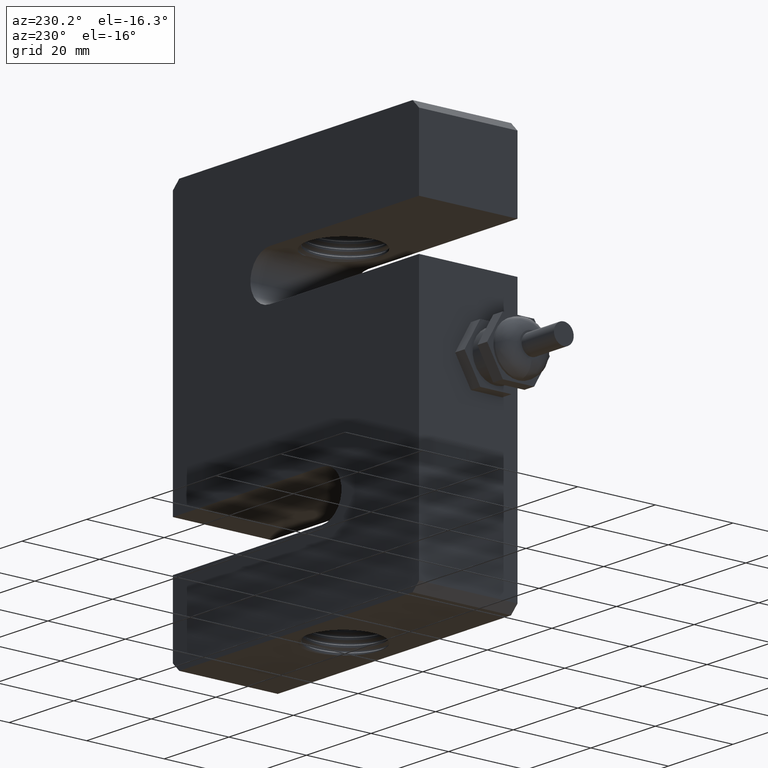
[diagram: clean part render]
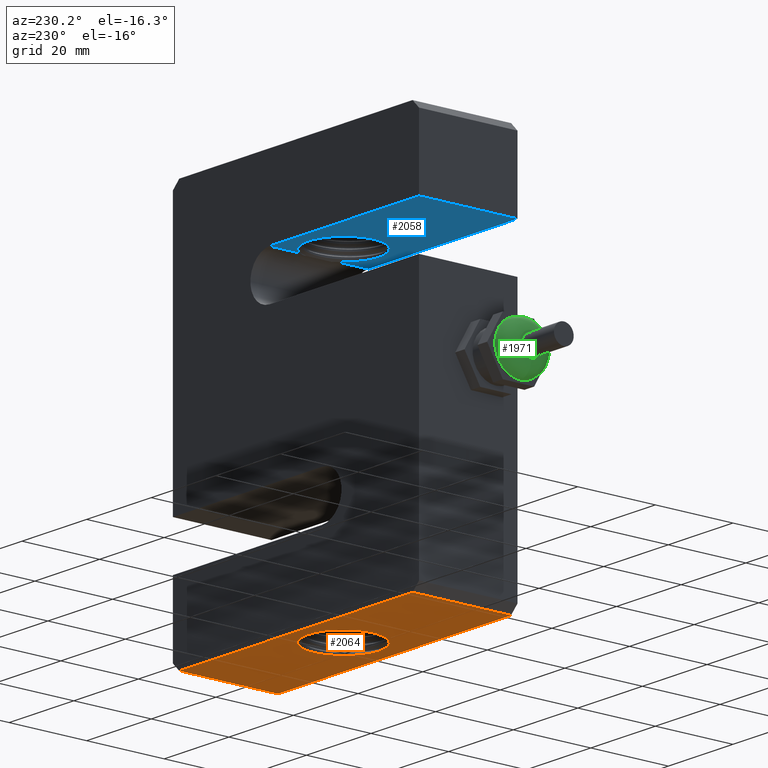
[diagram: same view with three faces highlighted in distinct colors, each labeled with its STEP entity id]
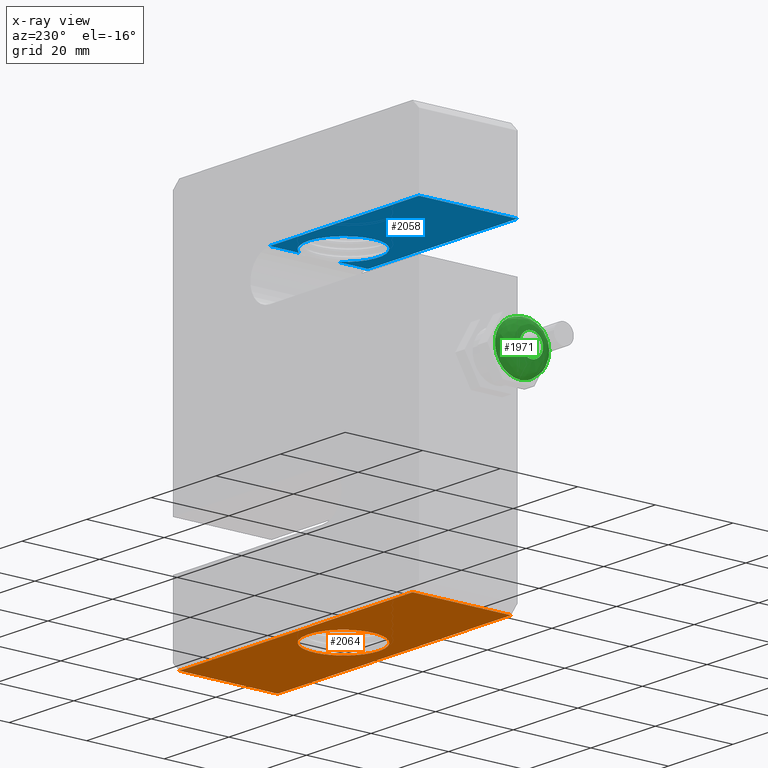
[diagram: x-ray of the same camera — body ghosted, the three highlighted faces saturated]
A machine part, auxiliary view with three faces highlighted in distinct colors.
The next image is the same camera in x-ray (body ghosted, the three faces saturated) — at least one of them is partly hidden behind the body in this view.
Their STEP definitions:

[orange] entity #2064 — the highlighted planar face has unit normal (0, 0, -1).
#127=B_SPLINE_CURVE_WITH_KNOTS('',3,(#6160,#6161,#6162,#6163,#6164,#6165,
#6166,#6167,#6168,#6169,#6170,#6171,#6172,#6173,#6174,#6175,#6176,#6177,
#6178,#6179,#6180,#6181,#6182,#6183,#6184,#6185,#6186,#6187,#6188,#6189,
#6190,#6191,#6192,#6193,#6194,#6195,#6196,#6197,#6198,#6199,#6200,#6201,
#6202,#6203,#6204,#6205,#6206,#6207,#6208,#6209,#6210,#6211,#6212,#6213,
#6214,#6215,#6216,#6217,#6218,#6219,#6220,#6221,#6222,#6223,#6224,#6225,
#6226,#6227,#6228,#6229,#6230,#6231,#6232,#6233,#6234,#6235,#6236,#6237,
#6238,#6239,#6240,#6241,#6242,#6243,#6244,#6245,#6246,#6247,#6248,#6249,
#6250,#6251,#6252,#6253,#6254,#6255,#6256,#6257,#6258,#6259,#6260,#6261,
#6262,#6263,#6264,#6265),.UNSPECIFIED.,.F.,.F.,(4,3,3,3,3,3,3,3,3,3,3,3,
3,3,3,3,3,3,3,3,3,3,3,3,3,3,3,3,3,3,3,3,3,3,3,4),(0.,0.0709001102821385,
0.142493419958094,0.214258092780719,0.285261098800125,0.331749284303985,
0.353509829266226,0.367301783242685,0.374963572326442,0.445609147196169,
0.471213840815562,0.541872824588906,0.612672001609219,0.683052612458871,
0.714171902654686,0.728093331494686,0.735785311123709,0.805540321727164,
0.875024120835001,0.932006934025384,1.00181629251055,1.04928011262189,1.0700455339206,
1.08379648369524,1.09180523985803,1.16423564324384,1.23298399184663,1.30117974510278,
1.34135329925203,1.35629048513793,1.3646913166047,1.38152685340128,1.44947015381554,
1.51767311396806,1.58548725284925,1.62532069162855),.UNSPECIFIED.);
#128=B_SPLINE_CURVE_WITH_KNOTS('',3,(#6266,#6267,#6268,#6269,#6270,#6271,
#6272,#6273,#6274,#6275,#6276,#6277,#6278,#6279,#6280,#6281,#6282,#6283,
#6284,#6285,#6286,#6287,#6288,#6289,#6290,#6291,#6292,#6293,#6294,#6295,
#6296,#6297,#6298,#6299,#6300,#6301,#6302,#6303,#6304,#6305,#6306,#6307,
#6308,#6309,#6310,#6311,#6312,#6313,#6314,#6315,#6316,#6317,#6318,#6319,
#6320,#6321,#6322,#6323,#6324,#6325,#6326,#6327,#6328,#6329,#6330,#6331,
#6332,#6333,#6334,#6335,#6336,#6337,#6338,#6339,#6340,#6341,#6342,#6343,
#6344,#6345,#6346,#6347,#6348,#6349,#6350,#6351,#6352,#6353,#6354,#6355,
#6356,#6357,#6358,#6359,#6360,#6361,#6362,#6363,#6364,#6365,#6366,#6367,
#6368,#6369,#6370,#6371),.UNSPECIFIED.,.F.,.F.,(4,3,3,3,3,3,3,3,3,3,3,3,
3,3,3,3,3,3,3,3,3,3,3,3,3,3,3,3,3,3,3,3,3,3,3,4),(0.,0.0664591051755904,
0.133905929878242,0.201981998929227,0.270064385369685,0.313344838743949,
0.335127701001341,0.344496286963589,0.352074743825142,0.42109851654693,
0.443186198866742,0.511565802064909,0.580566600369815,0.649699126450573,
0.680643761045784,0.69213033315687,0.701384184412642,0.77105220653177,0.841198504662556,
0.897256203212259,0.967187845364032,1.01646401471832,1.03802233881082,1.05156214577594,
1.05960753481099,1.12981620922672,1.20076561757214,1.2716200452087,1.31650862270352,
1.33105696215007,1.34223119897617,1.36139720019834,1.43202906454588,1.50333486208143,
1.57499922596976,1.62247305797282),.UNSPECIFIED.);
#162=FACE_BOUND('',#428,.T.);
#197=PLANE('',#2232);
#302=FACE_OUTER_BOUND('',#427,.T.);
#427=EDGE_LOOP('',(#1684,#1685,#1686,#1687));
#428=EDGE_LOOP('',(#1688,#1689,#1690,#1691));
#556=LINE('',#5904,#702);
#579=LINE('',#6154,#725);
#581=LINE('',#6158,#727);
#582=LINE('',#6159,#728);
#702=VECTOR('',#2601,10.);
#725=VECTOR('',#2642,10.);
#727=VECTOR('',#2646,10.);
#728=VECTOR('',#2647,10.);
#763=CIRCLE('',#2172,9.525);
#766=CIRCLE('',#2188,8.7503);
#853=VERTEX_POINT('',#3334);
#854=VERTEX_POINT('',#3341);
#885=VERTEX_POINT('',#4335);
#886=VERTEX_POINT('',#4361);
#956=VERTEX_POINT('',#5901);
#957=VERTEX_POINT('',#5903);
#975=VERTEX_POINT('',#6153);
#976=VERTEX_POINT('',#6157);
#1089=EDGE_CURVE('',#854,#853,#763,.T.);
#1132=EDGE_CURVE('',#886,#885,#766,.T.);
#1226=EDGE_CURVE('',#956,#957,#556,.T.);
#1253=EDGE_CURVE('',#957,#975,#579,.T.);
#1255=EDGE_CURVE('',#976,#956,#581,.T.);
#1256=EDGE_CURVE('',#975,#976,#582,.T.);
#1257=EDGE_CURVE('',#853,#886,#127,.T.);
#1258=EDGE_CURVE('',#885,#854,#128,.T.);
#1684=ORIENTED_EDGE('',*,*,#1255,.F.);
#1685=ORIENTED_EDGE('',*,*,#1256,.F.);
#1686=ORIENTED_EDGE('',*,*,#1253,.F.);
#1687=ORIENTED_EDGE('',*,*,#1226,.F.);
#1688=ORIENTED_EDGE('',*,*,#1257,.T.);
#1689=ORIENTED_EDGE('',*,*,#1132,.T.);
#1690=ORIENTED_EDGE('',*,*,#1258,.T.);
#1691=ORIENTED_EDGE('',*,*,#1089,.T.);
#2064=ADVANCED_FACE('',(#302,#162),#197,.T.);
#2172=AXIS2_PLACEMENT_3D('',#3342,#2453,#2454);
#2188=AXIS2_PLACEMENT_3D('',#4362,#2498,#2499);
#2232=AXIS2_PLACEMENT_3D('',#6156,#2644,#2645);
#2453=DIRECTION('center_axis',(0.,0.,1.));
#2454=DIRECTION('ref_axis',(1.,6.43162402581532E-14,0.));
#2498=DIRECTION('center_axis',(0.,0.,1.));
#2499=DIRECTION('ref_axis',(1.,0.,0.));
#2601=DIRECTION('',(-1.,0.,0.));
#2642=DIRECTION('',(0.,-1.,0.));
#2644=DIRECTION('center_axis',(0.,0.,-1.));
#2645=DIRECTION('ref_axis',(-1.,0.,0.));
#2646=DIRECTION('',(0.,1.,0.));
#2647=DIRECTION('',(1.,0.,0.));
#3334=CARTESIAN_POINT('',(-4.46859346148196,8.41173569936673,-50.8));
#3341=CARTESIAN_POINT('',(4.46859346148165,8.41173569936689,-50.8));
#3342=CARTESIAN_POINT('Origin',(0.,0.,-50.8));
#4335=CARTESIAN_POINT('',(6.76091187078728,-5.55498161702157,-50.8));
#4361=CARTESIAN_POINT('',(-6.76091187078707,-5.55498161702183,-50.8));
#4362=CARTESIAN_POINT('Origin',(0.,0.,-50.8));
#5901=CARTESIAN_POINT('',(36.1,12.7,-50.8));
#5903=CARTESIAN_POINT('',(-36.1,12.7,-50.8));
#5904=CARTESIAN_POINT('',(-38.1,12.7,-50.8));
#6153=CARTESIAN_POINT('',(-36.1,-12.7,-50.8));
#6154=CARTESIAN_POINT('',(-36.1,0.,-50.8));
#6156=CARTESIAN_POINT('Origin',(38.1,0.,-50.8));
#6157=CARTESIAN_POINT('',(36.1,-12.7,-50.8));
#6158=CARTESIAN_POINT('',(36.1,0.,-50.8));
#6159=CARTESIAN_POINT('',(-38.1,-12.7,-50.8));
#6160=CARTESIAN_POINT('Ctrl Pts',(-4.4685934614819,8.41173569936676,-50.8));
#6161=CARTESIAN_POINT('Ctrl Pts',(-4.67199633003562,8.29139912444319,-50.8));
#6162=CARTESIAN_POINT('Ctrl Pts',(-4.87043687997111,8.16357508907796,-50.8));
#6163=CARTESIAN_POINT('Ctrl Pts',(-5.06361441319958,8.02867938534016,-50.8));
#6164=CARTESIAN_POINT('Ctrl Pts',(-5.25868066773469,7.8924647891537,-50.8));
#6165=CARTESIAN_POINT('Ctrl Pts',(-5.44838097653642,7.74903913336006,-50.8));
#6166=CARTESIAN_POINT('Ctrl Pts',(-5.63237719301748,7.5987853822906,-50.8));
#6167=CARTESIAN_POINT('Ctrl Pts',(-5.81681381616187,7.44817198929792,-50.8));
#6168=CARTESIAN_POINT('Ctrl Pts',(-5.9955194743902,7.29069728848969,-50.8));
#6169=CARTESIAN_POINT('Ctrl Pts',(-6.16811789872641,7.12670888687211,-50.8));
#6170=CARTESIAN_POINT('Ctrl Pts',(-6.33888446784842,6.96446095889864,-50.8));
#6171=CARTESIAN_POINT('Ctrl Pts',(-6.50367311955335,6.79583633489891,-50.8));
#6172=CARTESIAN_POINT('Ctrl Pts',(-6.66207846293627,6.62114206585709,-50.8));
#6173=CARTESIAN_POINT('Ctrl Pts',(-6.76579205762514,6.5067635340037,-50.8));
#6174=CARTESIAN_POINT('Ctrl Pts',(-6.86676841993438,6.38978249052989,-50.8));
#6175=CARTESIAN_POINT('Ctrl Pts',(-6.96488293591594,6.27027972785523,-50.8));
#6176=CARTESIAN_POINT('Ctrl Pts',(-7.01080912798657,6.21434196190224,-50.8));
#6177=CARTESIAN_POINT('Ctrl Pts',(-7.0561081433015,6.15785161827241,-50.8));
#6178=CARTESIAN_POINT('Ctrl Pts',(-7.10076649592345,6.10081672435565,-50.8));
#6179=CARTESIAN_POINT('Ctrl Pts',(-7.12907120727582,6.06466769254981,-50.8));
#6180=CARTESIAN_POINT('Ctrl Pts',(-7.15711854917032,6.02829990662208,-50.8));
#6181=CARTESIAN_POINT('Ctrl Pts',(-7.18490498979382,5.99171538082305,-50.8));
#6182=CARTESIAN_POINT('Ctrl Pts',(-7.20034108012655,5.97139172538743,-50.8));
#6183=CARTESIAN_POINT('Ctrl Pts',(-7.21569379876079,5.95100490313061,-50.8));
#6184=CARTESIAN_POINT('Ctrl Pts',(-7.23095792774408,5.93056172196899,-50.8));
#6185=CARTESIAN_POINT('Ctrl Pts',(-7.37170092590309,5.74206524033257,-50.8));
#6186=CARTESIAN_POINT('Ctrl Pts',(-7.50503971408407,5.54861675880887,-50.8));
#6187=CARTESIAN_POINT('Ctrl Pts',(-7.63063945627879,5.35056843981255,-50.8));
#6188=CARTESIAN_POINT('Ctrl Pts',(-7.67616166943228,5.27878805527908,-50.8));
#6189=CARTESIAN_POINT('Ctrl Pts',(-7.72066688382301,5.2064031143968,-50.8));
#6190=CARTESIAN_POINT('Ctrl Pts',(-7.76413778969966,5.13342938600451,-50.8));
#6191=CARTESIAN_POINT('Ctrl Pts',(-7.88410056209635,4.93205031203482,-50.8));
#6192=CARTESIAN_POINT('Ctrl Pts',(-7.99619007899217,4.72618898741386,-50.8));
#6193=CARTESIAN_POINT('Ctrl Pts',(-8.10028660786293,4.51635051556556,-50.8));
#6194=CARTESIAN_POINT('Ctrl Pts',(-8.2045896728258,4.30609570689587,-50.8));
#6195=CARTESIAN_POINT('Ctrl Pts',(-8.30086817994642,4.09184728980698,-50.8));
#6196=CARTESIAN_POINT('Ctrl Pts',(-8.38895237667289,3.87409604779362,-50.8));
#6197=CARTESIAN_POINT('Ctrl Pts',(-8.47651581784158,3.65763215553999,-50.8));
#6198=CARTESIAN_POINT('Ctrl Pts',(-8.55598167081888,3.43770607570065,-50.8));
#6199=CARTESIAN_POINT('Ctrl Pts',(-8.62713237346924,3.21479272665983,-50.8));
#6200=CARTESIAN_POINT('Ctrl Pts',(-8.65859216525966,3.11622999590802,-50.8));
#6201=CARTESIAN_POINT('Ctrl Pts',(-8.68842564156855,3.01708320946466,-50.8));
#6202=CARTESIAN_POINT('Ctrl Pts',(-8.71661070472616,2.91739347503616,-50.8));
#6203=CARTESIAN_POINT('Ctrl Pts',(-8.72921948688767,2.87279658560866,-50.8));
#6204=CARTESIAN_POINT('Ctrl Pts',(-8.74149834769843,2.82809103924542,-50.8));
#6205=CARTESIAN_POINT('Ctrl Pts',(-8.75344517448844,2.78328053125901,-50.8));
#6206=CARTESIAN_POINT('Ctrl Pts',(-8.76004613113997,2.75852146963114,-50.8));
#6207=CARTESIAN_POINT('Ctrl Pts',(-8.7665455232183,2.73373096186406,-50.8));
#6208=CARTESIAN_POINT('Ctrl Pts',(-8.77293977767897,2.70892257612274,-50.8));
#6209=CARTESIAN_POINT('Ctrl Pts',(-8.83092631810376,2.48394678394683,-50.8));
#6210=CARTESIAN_POINT('Ctrl Pts',(-8.88034490532629,2.25722598854657,-50.8));
#6211=CARTESIAN_POINT('Ctrl Pts',(-8.92108746780887,2.029246959997,-50.8));
#6212=CARTESIAN_POINT('Ctrl Pts',(-8.96167162086378,1.80215432703059,-50.8));
#6213=CARTESIAN_POINT('Ctrl Pts',(-8.9936471891481,1.57381256820566,-50.8));
#6214=CARTESIAN_POINT('Ctrl Pts',(-9.01685708647818,1.34469234777671,-50.8));
#6215=CARTESIAN_POINT('Ctrl Pts',(-9.03589123919737,1.15679365935612,-50.8));
#6216=CARTESIAN_POINT('Ctrl Pts',(-9.04902920909078,0.968371074654891,-50.8));
#6217=CARTESIAN_POINT('Ctrl Pts',(-9.05615816709263,0.779683525987649,-50.8));
#6218=CARTESIAN_POINT('Ctrl Pts',(-9.06489181776576,0.548523356997939,-50.8));
#6219=CARTESIAN_POINT('Ctrl Pts',(-9.06460800883652,0.31696478464583,-50.8));
#6220=CARTESIAN_POINT('Ctrl Pts',(-9.05538564512526,0.0855163185522522,
-50.8));
#6221=CARTESIAN_POINT('Ctrl Pts',(-9.04911530227021,-0.0718469433096423,
-50.8));
#6222=CARTESIAN_POINT('Ctrl Pts',(-9.03871184022127,-0.229159148719257,
-50.8));
#6223=CARTESIAN_POINT('Ctrl Pts',(-9.02418698201668,-0.386256125246251,
-50.8));
#6224=CARTESIAN_POINT('Ctrl Pts',(-9.01783235655217,-0.454986052476811,
-50.8));
#6225=CARTESIAN_POINT('Ctrl Pts',(-9.01068873635049,-0.523674726765148,
-50.8));
#6226=CARTESIAN_POINT('Ctrl Pts',(-9.00275648649436,-0.592308102805853,
-50.8));
#6227=CARTESIAN_POINT('Ctrl Pts',(-8.9975037171042,-0.637757414583509,-50.8));
#6228=CARTESIAN_POINT('Ctrl Pts',(-8.99190511457548,-0.683182473341333,
-50.8));
#6229=CARTESIAN_POINT('Ctrl Pts',(-8.98596069602914,-0.728579149513314,
-50.8));
#6230=CARTESIAN_POINT('Ctrl Pts',(-8.98249857890651,-0.75501884393597,-50.8));
#6231=CARTESIAN_POINT('Ctrl Pts',(-8.97891933479615,-0.781447287270416,
-50.8));
#6232=CARTESIAN_POINT('Ctrl Pts',(-8.97522473646301,-0.807851995013543,
-50.8));
#6233=CARTESIAN_POINT('Ctrl Pts',(-8.94181115235853,-1.04665357596368,-50.8));
#6234=CARTESIAN_POINT('Ctrl Pts',(-8.89893377101505,-1.28377767068812,-50.8));
#6235=CARTESIAN_POINT('Ctrl Pts',(-8.84674647651231,-1.51865825522473,-50.8));
#6236=CARTESIAN_POINT('Ctrl Pts',(-8.79721216291751,-1.74159850615411,-50.8));
#6237=CARTESIAN_POINT('Ctrl Pts',(-8.73928977287701,-1.96251812949972,-50.8));
#6238=CARTESIAN_POINT('Ctrl Pts',(-8.67305978700408,-2.18091930622605,-50.8));
#6239=CARTESIAN_POINT('Ctrl Pts',(-8.60736215402028,-2.3975649866181,-50.8));
#6240=CARTESIAN_POINT('Ctrl Pts',(-8.53348971043,-2.61173314047273,-50.8));
#6241=CARTESIAN_POINT('Ctrl Pts',(-8.45147527087939,-2.82291522926392,-50.8));
#6242=CARTESIAN_POINT('Ctrl Pts',(-8.40316124293793,-2.94732085093861,-50.8));
#6243=CARTESIAN_POINT('Ctrl Pts',(-8.35202085840817,-3.07068974940344,-50.8));
#6244=CARTESIAN_POINT('Ctrl Pts',(-8.29805377307177,-3.19291297457016,-50.8));
#6245=CARTESIAN_POINT('Ctrl Pts',(-8.27798792621154,-3.23835757295216,-50.8));
#6246=CARTESIAN_POINT('Ctrl Pts',(-8.25753124451609,-3.28364374349192,-50.8));
#6247=CARTESIAN_POINT('Ctrl Pts',(-8.23668353188708,-3.3287657316233,-50.8));
#6248=CARTESIAN_POINT('Ctrl Pts',(-8.22495855761136,-3.35414281540819,-50.8));
#6249=CARTESIAN_POINT('Ctrl Pts',(-8.21311179750344,-3.37946379099462,-50.8));
#6250=CARTESIAN_POINT('Ctrl Pts',(-8.20114674076732,-3.40472064015666,-50.8));
#6251=CARTESIAN_POINT('Ctrl Pts',(-8.17716838174998,-3.45533617923935,-50.8));
#6252=CARTESIAN_POINT('Ctrl Pts',(-8.15271093730792,-3.50570286209907,-50.8));
#6253=CARTESIAN_POINT('Ctrl Pts',(-8.12777589522184,-3.55581349669472,-50.8));
#6254=CARTESIAN_POINT('Ctrl Pts',(-8.0271453613834,-3.75804535549551,-50.8));
#6255=CARTESIAN_POINT('Ctrl Pts',(-7.91873989014854,-3.95610897876036,-50.8));
#6256=CARTESIAN_POINT('Ctrl Pts',(-7.80292736303148,-4.1496465468373,-50.8));
#6257=CARTESIAN_POINT('Ctrl Pts',(-7.68667223376975,-4.34392375979411,-50.8));
#6258=CARTESIAN_POINT('Ctrl Pts',(-7.56295286643303,-4.53364077726578,-50.8));
#6259=CARTESIAN_POINT('Ctrl Pts',(-7.43209825035731,-4.71840547454071,-50.8));
#6260=CARTESIAN_POINT('Ctrl Pts',(-7.30198962914853,-4.90211683858301,-50.8));
#6261=CARTESIAN_POINT('Ctrl Pts',(-7.16482638280398,-5.08093264772301,-50.8));
#6262=CARTESIAN_POINT('Ctrl Pts',(-7.02089661810347,-5.25443040123507,-50.8));
#6263=CARTESIAN_POINT('Ctrl Pts',(-6.93635351890167,-5.35634148138572,-50.8));
#6264=CARTESIAN_POINT('Ctrl Pts',(-6.84947514992096,-5.45641694783345,-50.8));
#6265=CARTESIAN_POINT('Ctrl Pts',(-6.76031521176791,-5.55456418590757,-50.8));
#6266=CARTESIAN_POINT('Ctrl Pts',(6.76091187078728,-5.55498161702157,-50.8));
#6267=CARTESIAN_POINT('Ctrl Pts',(6.90992074038008,-5.39105464238615,-50.8));
#6268=CARTESIAN_POINT('Ctrl Pts',(7.05229797137168,-5.22166742737262,-50.8));
#6269=CARTESIAN_POINT('Ctrl Pts',(7.18792322724407,-5.04732688549161,-50.8));
#6270=CARTESIAN_POINT('Ctrl Pts',(7.3255641544565,-4.87039528318149,-50.8));
#6271=CARTESIAN_POINT('Ctrl Pts',(7.45625130585648,-4.68836159239181,-50.8));
#6272=CARTESIAN_POINT('Ctrl Pts',(7.57982791326478,-4.50171121347885,-50.8));
#6273=CARTESIAN_POINT('Ctrl Pts',(7.70455742716113,-4.31331948207728,-50.8));
#6274=CARTESIAN_POINT('Ctrl Pts',(7.82204349685676,-4.12022400972177,-50.8));
#6275=CARTESIAN_POINT('Ctrl Pts',(7.93208769597192,-3.92288617783511,-50.8));
#6276=CARTESIAN_POINT('Ctrl Pts',(8.04214210707604,-3.7255300331998,-50.8));
#6277=CARTESIAN_POINT('Ctrl Pts',(8.144753620177,-3.52393016908535,-50.8));
#6278=CARTESIAN_POINT('Ctrl Pts',(8.2396811459956,-3.31851875399422,-50.8));
#6279=CARTESIAN_POINT('Ctrl Pts',(8.30002724386217,-3.18793726826489,-50.8));
#6280=CARTESIAN_POINT('Ctrl Pts',(8.35726719181391,-3.0558148831223,-50.8));
#6281=CARTESIAN_POINT('Ctrl Pts',(8.41132909139091,-2.92225807137213,-50.8));
#6282=CARTESIAN_POINT('Ctrl Pts',(8.43853820821034,-2.85503951410025,-50.8));
#6283=CARTESIAN_POINT('Ctrl Pts',(8.46494217765317,-2.78745755953105,-50.8));
#6284=CARTESIAN_POINT('Ctrl Pts',(8.49053103479878,-2.7195255308323,-50.8));
#6285=CARTESIAN_POINT('Ctrl Pts',(8.5015365401824,-2.6903086610319,-50.8));
#6286=CARTESIAN_POINT('Ctrl Pts',(8.51239126147259,-2.66102703367082,-50.8));
#6287=CARTESIAN_POINT('Ctrl Pts',(8.52309437424013,-2.63168170101989,-50.8));
#6288=CARTESIAN_POINT('Ctrl Pts',(8.53175235941741,-2.6079436109304,-50.8));
#6289=CARTESIAN_POINT('Ctrl Pts',(8.54030782513245,-2.58417290818289,-50.8));
#6290=CARTESIAN_POINT('Ctrl Pts',(8.5487601305469,-2.5603714680523,-50.8));
#6291=CARTESIAN_POINT('Ctrl Pts',(8.62574282221622,-2.34359050274002,-50.8));
#6292=CARTESIAN_POINT('Ctrl Pts',(8.69418335043337,-2.12422952714435,-50.8));
#6293=CARTESIAN_POINT('Ctrl Pts',(8.7539078676953,-1.90277499944435,-50.8));
#6294=CARTESIAN_POINT('Ctrl Pts',(8.77301977815697,-1.83190930979511,-50.8));
#6295=CARTESIAN_POINT('Ctrl Pts',(8.79123884803959,-1.76082899144532,-50.8));
#6296=CARTESIAN_POINT('Ctrl Pts',(8.8085584632977,-1.68954933567766,-50.8));
#6297=CARTESIAN_POINT('Ctrl Pts',(8.86217696440373,-1.46887998219269,-50.8));
#6298=CARTESIAN_POINT('Ctrl Pts',(8.90717867564724,-1.24630174251928,-50.8));
#6299=CARTESIAN_POINT('Ctrl Pts',(8.94365709135836,-1.02232149253729,-50.8));
#6300=CARTESIAN_POINT('Ctrl Pts',(8.98046689555788,-0.796306492004147,-50.8));
#6301=CARTESIAN_POINT('Ctrl Pts',(9.00859794243664,-0.568863263063085,-50.8));
#6302=CARTESIAN_POINT('Ctrl Pts',(9.02809560988881,-0.34049608926948,-50.8));
#6303=CARTESIAN_POINT('Ctrl Pts',(9.04763049987218,-0.111692945159295,-50.8));
#6304=CARTESIAN_POINT('Ctrl Pts',(9.05849906893589,0.118038345894921,-50.8));
#6305=CARTESIAN_POINT('Ctrl Pts',(9.0606952257175,0.348197299065563,-50.8));
#6306=CARTESIAN_POINT('Ctrl Pts',(9.06167825458935,0.451219495829528,-50.8));
#6307=CARTESIAN_POINT('Ctrl Pts',(9.06092300486067,0.554327406004136,-50.8));
#6308=CARTESIAN_POINT('Ctrl Pts',(9.05842553530232,0.657476028228282,-50.8));
#6309=CARTESIAN_POINT('Ctrl Pts',(9.05749848075627,0.695764542629426,-50.8));
#6310=CARTESIAN_POINT('Ctrl Pts',(9.05633134900378,0.734058664316742,-50.8));
#6311=CARTESIAN_POINT('Ctrl Pts',(9.05492386429167,0.772356081419683,-50.8));
#6312=CARTESIAN_POINT('Ctrl Pts',(9.05378996167523,0.803209376721665,-50.8));
#6313=CARTESIAN_POINT('Ctrl Pts',(9.05249992144982,0.834066609938651,-50.8));
#6314=CARTESIAN_POINT('Ctrl Pts',(9.05105478766788,0.864904422685336,-50.8));
#6315=CARTESIAN_POINT('Ctrl Pts',(9.04017503506519,1.09706823871832,-50.8));
#6316=CARTESIAN_POINT('Ctrl Pts',(9.02049998808164,1.32840982497125,-50.8));
#6317=CARTESIAN_POINT('Ctrl Pts',(8.9921311903713,1.55841071996507,-50.8));
#6318=CARTESIAN_POINT('Ctrl Pts',(8.96356763881246,1.78999058774137,-50.8));
#6319=CARTESIAN_POINT('Ctrl Pts',(8.92619062658395,2.02021196641844,-50.8));
#6320=CARTESIAN_POINT('Ctrl Pts',(8.88005202390647,2.24855570890172,-50.8));
#6321=CARTESIAN_POINT('Ctrl Pts',(8.84318017251416,2.43103753649543,-50.8));
#6322=CARTESIAN_POINT('Ctrl Pts',(8.80071176142145,2.6123205460415,-50.8));
#6323=CARTESIAN_POINT('Ctrl Pts',(8.75264933060899,2.79213994689297,-50.8));
#6324=CARTESIAN_POINT('Ctrl Pts',(8.69269173692466,3.01646356911842,-50.8));
#6325=CARTESIAN_POINT('Ctrl Pts',(8.6240300108968,3.23851022055642,-50.8));
#6326=CARTESIAN_POINT('Ctrl Pts',(8.54693752504054,3.45786176943455,-50.8));
#6327=CARTESIAN_POINT('Ctrl Pts',(8.49261558618557,3.61242419265329,-50.8));
#6328=CARTESIAN_POINT('Ctrl Pts',(8.43410659574006,3.7656483049574,-50.8));
#6329=CARTESIAN_POINT('Ctrl Pts',(8.37149152639884,3.91738276161331,-50.8));
#6330=CARTESIAN_POINT('Ctrl Pts',(8.34409743356205,3.98376658640026,-50.8));
#6331=CARTESIAN_POINT('Ctrl Pts',(8.31591726065447,4.04986521603259,-50.8));
#6332=CARTESIAN_POINT('Ctrl Pts',(8.28695709994696,4.11566563510532,-50.8));
#6333=CARTESIAN_POINT('Ctrl Pts',(8.26876853464031,4.15699189816018,-50.8));
#6334=CARTESIAN_POINT('Ctrl Pts',(8.25027229281401,4.19820052682685,-50.8));
#6335=CARTESIAN_POINT('Ctrl Pts',(8.23146980219391,4.23928824820553,-50.8));
#6336=CARTESIAN_POINT('Ctrl Pts',(8.22029731264098,4.26370268069389,-50.8));
#6337=CARTESIAN_POINT('Ctrl Pts',(8.20901759611242,4.28807237112701,-50.8));
#6338=CARTESIAN_POINT('Ctrl Pts',(8.19763581955052,4.31238657089223,-50.8));
#6339=CARTESIAN_POINT('Ctrl Pts',(8.09831191595481,4.52456620913705,-50.8));
#6340=CARTESIAN_POINT('Ctrl Pts',(7.99112103197179,4.73273813258405,-50.8));
#6341=CARTESIAN_POINT('Ctrl Pts',(7.87639365754483,4.93649665698126,-50.8));
#6342=CARTESIAN_POINT('Ctrl Pts',(7.76045585634926,5.14240492788399,-50.8));
#6343=CARTESIAN_POINT('Ctrl Pts',(7.63682148068948,5.3438067984614,-50.8));
#6344=CARTESIAN_POINT('Ctrl Pts',(7.50578056608368,5.54026965279606,-50.8));
#6345=CARTESIAN_POINT('Ctrl Pts',(7.37491507730946,5.73646950026985,-50.8));
#6346=CARTESIAN_POINT('Ctrl Pts',(7.23666255395339,5.92774414803532,-50.8));
#6347=CARTESIAN_POINT('Ctrl Pts',(7.09126539201765,6.1136397468881,-50.8));
#6348=CARTESIAN_POINT('Ctrl Pts',(6.999151575157,6.2314106367731,-50.8));
#6349=CARTESIAN_POINT('Ctrl Pts',(6.90416924749155,6.34702208568125,-50.8));
#6350=CARTESIAN_POINT('Ctrl Pts',(6.80637122903358,6.46035222913157,-50.8));
#6351=CARTESIAN_POINT('Ctrl Pts',(6.77467499696005,6.49708240612663,-50.8));
#6352=CARTESIAN_POINT('Ctrl Pts',(6.74268295337787,6.53357291000163,-50.8));
#6353=CARTESIAN_POINT('Ctrl Pts',(6.71039675225306,6.56981945829789,-50.8));
#6354=CARTESIAN_POINT('Ctrl Pts',(6.68559848170754,6.59765957821529,-50.8));
#6355=CARTESIAN_POINT('Ctrl Pts',(6.66062454196542,6.62535801875571,-50.8));
#6356=CARTESIAN_POINT('Ctrl Pts',(6.63549269592724,6.65289442371563,-50.8));
#6357=CARTESIAN_POINT('Ctrl Pts',(6.59238666556657,6.70012474282641,-50.8));
#6358=CARTESIAN_POINT('Ctrl Pts',(6.54880635164341,6.7468895025386,-50.8));
#6359=CARTESIAN_POINT('Ctrl Pts',(6.50475769052713,6.79318055658315,-50.8));
#6360=CARTESIAN_POINT('Ctrl Pts',(6.3424265385779,6.96377552899695,-50.8));
#6361=CARTESIAN_POINT('Ctrl Pts',(6.17373826234945,7.12793917933623,-50.8));
#6362=CARTESIAN_POINT('Ctrl Pts',(5.99918903969961,7.28548467101189,-50.8));
#6363=CARTESIAN_POINT('Ctrl Pts',(5.82297435748458,7.44453338133316,-50.8));
#6364=CARTESIAN_POINT('Ctrl Pts',(5.64078589196843,7.59683744705974,-50.8));
#6365=CARTESIAN_POINT('Ctrl Pts',(5.45309088847047,7.74217294621548,-50.8));
#6366=CARTESIAN_POINT('Ctrl Pts',(5.26445204709162,7.8882392754252,-50.8));
#6367=CARTESIAN_POINT('Ctrl Pts',(5.07025063828478,8.02726719233658,-50.8));
#6368=CARTESIAN_POINT('Ctrl Pts',(4.87092486244206,8.15899132706766,-50.8));
#6369=CARTESIAN_POINT('Ctrl Pts',(4.73888213042281,8.24625156498332,-50.8));
#6370=CARTESIAN_POINT('Ctrl Pts',(4.60458991226413,8.33030585095938,-50.8));
#6371=CARTESIAN_POINT('Ctrl Pts',(4.46816861359277,8.41106654985739,-50.8));

[blue] entity #2058 — the highlighted planar face has unit normal (0, 0, -1).
#125=B_SPLINE_CURVE_WITH_KNOTS('',3,(#5924,#5925,#5926,#5927,#5928,#5929,
#5930,#5931,#5932,#5933,#5934,#5935,#5936,#5937,#5938,#5939,#5940,#5941,
#5942,#5943,#5944,#5945,#5946,#5947,#5948,#5949,#5950,#5951,#5952,#5953,
#5954,#5955,#5956,#5957,#5958,#5959,#5960,#5961,#5962,#5963,#5964,#5965,
#5966,#5967,#5968,#5969,#5970,#5971,#5972,#5973,#5974,#5975,#5976,#5977,
#5978,#5979,#5980,#5981,#5982,#5983,#5984,#5985,#5986,#5987,#5988,#5989,
#5990,#5991,#5992,#5993,#5994,#5995,#5996,#5997,#5998,#5999,#6000,#6001,
#6002,#6003,#6004,#6005,#6006,#6007,#6008,#6009,#6010,#6011,#6012,#6013,
#6014,#6015,#6016,#6017),.UNSPECIFIED.,.F.,.F.,(4,3,3,3,3,3,3,3,3,3,3,3,
3,3,3,3,3,3,3,3,3,3,3,3,3,3,3,3,3,3,3,4),(0.,0.0664591384825362,0.133905987817287,
0.201982069283608,0.270064447163349,0.313344885089198,0.335127682009554,
0.344496210470742,0.35207472703832,0.421098508346324,0.443186198866746,
0.511565780158174,0.580566567110715,0.649699092228031,0.68064373110106,
0.692130188590903,0.701384129733991,0.771052135828931,0.841198433017314,
0.89725620321226,0.967187733227868,1.01644294034781,1.03799209346278,1.05266902565647,
1.06188101466602,1.13223659739867,1.20312099847337,1.27377590340011,1.28435300427006,
1.29401184324963,1.36122939018736,1.42240892513961),.UNSPECIFIED.);
#126=B_SPLINE_CURVE_WITH_KNOTS('',3,(#6024,#6025,#6026,#6027,#6028,#6029,
#6030,#6031,#6032,#6033,#6034,#6035,#6036,#6037,#6038,#6039,#6040,#6041,
#6042,#6043,#6044,#6045,#6046,#6047,#6048,#6049,#6050,#6051,#6052,#6053,
#6054,#6055,#6056,#6057,#6058,#6059,#6060,#6061,#6062,#6063,#6064,#6065,
#6066,#6067,#6068,#6069,#6070,#6071,#6072,#6073,#6074,#6075,#6076,#6077,
#6078,#6079,#6080,#6081,#6082,#6083,#6084,#6085,#6086,#6087,#6088,#6089,
#6090,#6091,#6092,#6093,#6094,#6095,#6096,#6097,#6098,#6099,#6100,#6101,
#6102,#6103,#6104,#6105,#6106,#6107,#6108,#6109,#6110,#6111,#6112,#6113,
#6114,#6115,#6116,#6117,#6118,#6119,#6120,#6121,#6122,#6123,#6124,#6125,
#6126,#6127,#6128,#6129),.UNSPECIFIED.,.F.,.F.,(4,3,3,3,3,3,3,3,3,3,3,3,
3,3,3,3,3,3,3,3,3,3,3,3,3,3,3,3,3,3,3,3,3,3,3,4),(0.,0.0709000855724343,
0.142493383823388,0.21425805918418,0.285261083748256,0.331749273015084,
0.353509806343972,0.367300542889733,0.374961883604056,0.445607466769527,
0.471213840815568,0.541872833599344,0.612672010614699,0.683052615919757,
0.714171905682963,0.728093341656096,0.735785318263372,0.805540331680083,
0.875024125341673,0.932006934025406,1.00181629198324,1.0492801121605,1.07004553348804,
1.08379648294414,1.09180523887746,1.16423564250841,1.23298399077152,1.30117974227259,
1.34135329783693,1.35629048195315,1.36469131004643,1.38152685340127,1.44947015258388,
1.51767311199497,1.58548725275822,1.62532069162853),.UNSPECIFIED.);
#191=PLANE('',#2225);
#296=FACE_OUTER_BOUND('',#420,.T.);
#420=EDGE_LOOP('',(#1653,#1654,#1655,#1656,#1657,#1658,#1659,#1660,#1661,
#1662));
#560=LINE('',#5914,#706);
#565=LINE('',#6019,#711);
#566=LINE('',#6021,#712);
#567=LINE('',#6022,#713);
#568=LINE('',#6023,#714);
#706=VECTOR('',#2607,10.);
#711=VECTOR('',#2616,10.);
#712=VECTOR('',#2617,10.);
#713=VECTOR('',#2618,10.);
#714=VECTOR('',#2619,10.);
#767=CIRCLE('',#2190,9.525);
#770=CIRCLE('',#2206,8.7503);
#771=CIRCLE('',#2208,8.7503);
#889=VERTEX_POINT('',#4404);
#890=VERTEX_POINT('',#4414);
#918=VERTEX_POINT('',#4850);
#919=VERTEX_POINT('',#4852);
#922=VERTEX_POINT('',#4865);
#961=VERTEX_POINT('',#5911);
#962=VERTEX_POINT('',#5913);
#965=VERTEX_POINT('',#5923);
#966=VERTEX_POINT('',#6018);
#967=VERTEX_POINT('',#6020);
#1136=EDGE_CURVE('',#890,#889,#767,.T.);
#1177=EDGE_CURVE('',#919,#918,#770,.T.);
#1181=EDGE_CURVE('',#918,#922,#771,.T.);
#1231=EDGE_CURVE('',#961,#962,#560,.T.);
#1236=EDGE_CURVE('',#922,#965,#125,.T.);
#1237=EDGE_CURVE('',#966,#965,#565,.T.);
#1238=EDGE_CURVE('',#967,#966,#566,.T.);
#1239=EDGE_CURVE('',#967,#962,#567,.T.);
#1240=EDGE_CURVE('',#890,#961,#568,.T.);
#1241=EDGE_CURVE('',#889,#919,#126,.T.);
#1653=ORIENTED_EDGE('',*,*,#1236,.T.);
#1654=ORIENTED_EDGE('',*,*,#1237,.F.);
#1655=ORIENTED_EDGE('',*,*,#1238,.F.);
#1656=ORIENTED_EDGE('',*,*,#1239,.T.);
#1657=ORIENTED_EDGE('',*,*,#1231,.F.);
#1658=ORIENTED_EDGE('',*,*,#1240,.F.);
#1659=ORIENTED_EDGE('',*,*,#1136,.T.);
#1660=ORIENTED_EDGE('',*,*,#1241,.T.);
#1661=ORIENTED_EDGE('',*,*,#1177,.T.);
#1662=ORIENTED_EDGE('',*,*,#1181,.T.);
#2058=ADVANCED_FACE('',(#296),#191,.T.);
#2190=AXIS2_PLACEMENT_3D('',#4415,#2503,#2504);
#2206=AXIS2_PLACEMENT_3D('',#4853,#2547,#2548);
#2208=AXIS2_PLACEMENT_3D('',#4900,#2552,#2553);
#2225=AXIS2_PLACEMENT_3D('',#5922,#2614,#2615);
#2503=DIRECTION('center_axis',(0.,0.,1.));
#2504=DIRECTION('ref_axis',(1.,-5.01053855429512E-14,0.));
#2547=DIRECTION('center_axis',(0.,0.,1.));
#2548=DIRECTION('ref_axis',(1.,0.,0.));
#2552=DIRECTION('center_axis',(0.,0.,1.));
#2553=DIRECTION('ref_axis',(1.,0.,0.));
#2607=DIRECTION('',(-1.,0.,0.));
#2614=DIRECTION('center_axis',(0.,0.,-1.));
#2615=DIRECTION('ref_axis',(-1.,0.,0.));
#2616=DIRECTION('',(0.,1.,0.));
#2617=DIRECTION('',(1.,0.,0.));
#2618=DIRECTION('',(0.,1.,0.));
#2619=DIRECTION('',(0.,1.,0.));
#4404=CARTESIAN_POINT('',(7.58781949779197,5.75765753314036,30.6));
#4414=CARTESIAN_POINT('',(8.10000000000001,5.01154916168641,30.6));
#4415=CARTESIAN_POINT('Origin',(0.,0.,30.6));
#4850=CARTESIAN_POINT('',(-8.7503,1.07160268865791E-15,30.6));
#4852=CARTESIAN_POINT('',(-6.56573847283374,5.7843606730866,30.6));
#4853=CARTESIAN_POINT('Origin',(0.,0.,30.6));
#4865=CARTESIAN_POINT('',(-4.40091829974008,-7.56304622549756,30.6));
#4900=CARTESIAN_POINT('Origin',(0.,0.,30.6));
#5911=CARTESIAN_POINT('',(8.10000000000001,12.7,30.6));
#5913=CARTESIAN_POINT('',(-38.1,12.7,30.6));
#5914=CARTESIAN_POINT('',(-38.1,12.7,30.6));
#5922=CARTESIAN_POINT('Origin',(8.10000000000001,0.,30.6));
#5923=CARTESIAN_POINT('',(8.10000000000001,-4.83414298652848,30.6));
#5924=CARTESIAN_POINT('Ctrl Pts',(-4.40091829974008,-7.56304622549756,30.6));
#5925=CARTESIAN_POINT('Ctrl Pts',(-4.21524965435827,-7.68388868303026,30.6));
#5926=CARTESIAN_POINT('Ctrl Pts',(-4.02525291458629,-7.79731086903817,30.6));
#5927=CARTESIAN_POINT('Ctrl Pts',(-3.83144772005041,-7.90327515250429,30.6));
#5928=CARTESIAN_POINT('Ctrl Pts',(-3.63476220689725,-8.01081426939613,30.6));
#5929=CARTESIAN_POINT('Ctrl Pts',(-3.43415370524015,-8.1106724716316,30.6));
#5930=CARTESIAN_POINT('Ctrl Pts',(-3.2301264514315,-8.20277272216832,30.6));
#5931=CARTESIAN_POINT('Ctrl Pts',(-3.02419576543767,-8.29573220390019,30.6));
#5932=CARTESIAN_POINT('Ctrl Pts',(-2.81478167571426,-8.38078861383499,30.6));
#5933=CARTESIAN_POINT('Ctrl Pts',(-2.60237137860118,-8.45781994866774,30.6));
#5934=CARTESIAN_POINT('Ctrl Pts',(-2.38994143548297,-8.53485840819273,30.6));
#5935=CARTESIAN_POINT('Ctrl Pts',(-2.17451410890472,-8.6038705656664,30.6));
#5936=CARTESIAN_POINT('Ctrl Pts',(-1.95655458893162,-8.66468762839034,30.6));
#5937=CARTESIAN_POINT('Ctrl Pts',(-1.81799621643754,-8.70334945528342,30.6));
#5938=CARTESIAN_POINT('Ctrl Pts',(-1.67841411001647,-8.73869850448824,30.6));
#5939=CARTESIAN_POINT('Ctrl Pts',(-1.53792487933784,-8.77068085042952,30.6));
#5940=CARTESIAN_POINT('Ctrl Pts',(-1.46721745288775,-8.78677738225919,30.6));
#5941=CARTESIAN_POINT('Ctrl Pts',(-1.39628022042609,-8.80202097771044,30.6));
#5942=CARTESIAN_POINT('Ctrl Pts',(-1.32512792844287,-8.8164039333961,30.6));
#5943=CARTESIAN_POINT('Ctrl Pts',(-1.29452615241931,-8.82258987591716,30.6));
#5944=CARTESIAN_POINT('Ctrl Pts',(-1.26388459483777,-8.82861661359676,30.6));
#5945=CARTESIAN_POINT('Ctrl Pts',(-1.23320442635924,-8.83448350111163,30.6));
#5946=CARTESIAN_POINT('Ctrl Pts',(-1.20838621012883,-8.83922942299422,30.6));
#5947=CARTESIAN_POINT('Ctrl Pts',(-1.18355221440201,-8.84386892491553,30.6));
#5948=CARTESIAN_POINT('Ctrl Pts',(-1.15870439348549,-8.84840167440891,30.6));
#5949=CARTESIAN_POINT('Ctrl Pts',(-0.932394858944146,-8.88968515079441,
30.6));
#5950=CARTESIAN_POINT('Ctrl Pts',(-0.704906174965236,-8.92212358579938,
30.6));
#5951=CARTESIAN_POINT('Ctrl Pts',(-0.476746356082319,-8.94562325275391,
30.6));
#5952=CARTESIAN_POINT('Ctrl Pts',(-0.40373494793889,-8.95314317358683,30.6));
#5953=CARTESIAN_POINT('Ctrl Pts',(-0.330654621194151,-8.95974740734448,
30.6));
#5954=CARTESIAN_POINT('Ctrl Pts',(-0.257521528748548,-8.96543187331086,
30.6));
#5955=CARTESIAN_POINT('Ctrl Pts',(-0.0311144159110192,-8.98302997403974,
30.6));
#5956=CARTESIAN_POINT('Ctrl Pts',(0.195797432921086,-8.99181681982363,30.6));
#5957=CARTESIAN_POINT('Ctrl Pts',(0.422728647259935,-8.99196585108682,30.6));
#5958=CARTESIAN_POINT('Ctrl Pts',(0.651721455898837,-8.99211623624928,30.6));
#5959=CARTESIAN_POINT('Ctrl Pts',(0.880734620883753,-8.98347115016141,30.6));
#5960=CARTESIAN_POINT('Ctrl Pts',(1.10927762702863,-8.9661561225583,30.6));
#5961=CARTESIAN_POINT('Ctrl Pts',(1.3382569736492,-8.94880803663717,30.6));
#5962=CARTESIAN_POINT('Ctrl Pts',(1.56676503531479,-8.92275681724236,30.6));
#5963=CARTESIAN_POINT('Ctrl Pts',(1.79430680621847,-8.88807658063352,30.6));
#5964=CARTESIAN_POINT('Ctrl Pts',(1.89615753302464,-8.87255324489436,30.6));
#5965=CARTESIAN_POINT('Ctrl Pts',(1.99781457251708,-8.85530032903163,30.6));
#5966=CARTESIAN_POINT('Ctrl Pts',(2.09923287266684,-8.83632114750151,30.6));
#5967=CARTESIAN_POINT('Ctrl Pts',(2.13687871491248,-8.82927619335834,30.6));
#5968=CARTESIAN_POINT('Ctrl Pts',(2.17449165685453,-8.82199336575031,30.6));
#5969=CARTESIAN_POINT('Ctrl Pts',(2.21206937235829,-8.8144727626155,30.6));
#5970=CARTESIAN_POINT('Ctrl Pts',(2.24234345537049,-8.80841386945095,30.6));
#5971=CARTESIAN_POINT('Ctrl Pts',(2.27259642804581,-8.80220021915531,30.6));
#5972=CARTESIAN_POINT('Ctrl Pts',(2.30280539976844,-8.7958365820914,30.6));
#5973=CARTESIAN_POINT('Ctrl Pts',(2.53023269734384,-8.74792813974238,30.6));
#5974=CARTESIAN_POINT('Ctrl Pts',(2.75544026123758,-8.69146949401108,30.6));
#5975=CARTESIAN_POINT('Ctrl Pts',(2.977932573331,-8.62664388577266,30.6));
#5976=CARTESIAN_POINT('Ctrl Pts',(3.20195235975874,-8.56137323090832,30.6));
#5977=CARTESIAN_POINT('Ctrl Pts',(3.42322015957949,-8.48762029353279,30.6));
#5978=CARTESIAN_POINT('Ctrl Pts',(3.64123182495223,-8.40551939172754,30.6));
#5979=CARTESIAN_POINT('Ctrl Pts',(3.81545695624407,-8.33990803844632,30.6));
#5980=CARTESIAN_POINT('Ctrl Pts',(3.98760272660836,-8.2689642329409,30.6));
#5981=CARTESIAN_POINT('Ctrl Pts',(4.15740816577575,-8.19273287632784,30.6));
#5982=CARTESIAN_POINT('Ctrl Pts',(4.36923882055656,-8.09763499097532,30.6));
#5983=CARTESIAN_POINT('Ctrl Pts',(4.57742836608957,-7.99430981900629,30.6));
#5984=CARTESIAN_POINT('Ctrl Pts',(4.78160783331236,-7.88309414584689,30.6));
#5985=CARTESIAN_POINT('Ctrl Pts',(4.92541852850882,-7.80476108184519,30.6));
#5986=CARTESIAN_POINT('Ctrl Pts',(5.06723952804345,-7.72251257080211,30.6));
#5987=CARTESIAN_POINT('Ctrl Pts',(5.20693457886341,-7.6364526398807,30.6));
#5988=CARTESIAN_POINT('Ctrl Pts',(5.26805116359714,-7.59880142010259,30.6));
#5989=CARTESIAN_POINT('Ctrl Pts',(5.32876073955003,-7.56042053253753,30.6));
#5990=CARTESIAN_POINT('Ctrl Pts',(5.38905145008576,-7.52131806468063,30.6));
#5991=CARTESIAN_POINT('Ctrl Pts',(5.43011490467821,-7.49468572946635,30.6));
#5992=CARTESIAN_POINT('Ctrl Pts',(5.47098404813493,-7.46771865636724,30.6));
#5993=CARTESIAN_POINT('Ctrl Pts',(5.51165505419611,-7.44041930503496,30.6));
#5994=CARTESIAN_POINT('Ctrl Pts',(5.53718224583933,-7.42328484388722,30.6));
#5995=CARTESIAN_POINT('Ctrl Pts',(5.56262439395839,-7.4060241476193,30.6));
#5996=CARTESIAN_POINT('Ctrl Pts',(5.58797575765901,-7.38864146174922,30.6));
#5997=CARTESIAN_POINT('Ctrl Pts',(5.78159409180762,-7.25588305392002,30.6));
#5998=CARTESIAN_POINT('Ctrl Pts',(5.97001035186373,-7.11595146024382,30.6));
#5999=CARTESIAN_POINT('Ctrl Pts',(6.15286706981338,-6.96922796711288,30.6));
#6000=CARTESIAN_POINT('Ctrl Pts',(6.33709820586409,-6.82140164643986,30.6));
#6001=CARTESIAN_POINT('Ctrl Pts',(6.51568648118402,-6.6666806036024,30.6));
#6002=CARTESIAN_POINT('Ctrl Pts',(6.68824236336709,-6.50540801163303,30.6));
#6003=CARTESIAN_POINT('Ctrl Pts',(6.86023957665168,-6.34465755765264,30.6));
#6004=CARTESIAN_POINT('Ctrl Pts',(7.0262439287202,-6.17739749582491,30.6));
#6005=CARTESIAN_POINT('Ctrl Pts',(7.18583773786015,-6.00392713676264,30.6));
#6006=CARTESIAN_POINT('Ctrl Pts',(7.20972907023465,-5.97795847276611,30.6));
#6007=CARTESIAN_POINT('Ctrl Pts',(7.23347667298988,-5.95185056621341,30.6));
#6008=CARTESIAN_POINT('Ctrl Pts',(7.2570790714685,-5.92560435156249,30.6));
#6009=CARTESIAN_POINT('Ctrl Pts',(7.27863240344855,-5.90163672903027,30.6));
#6010=CARTESIAN_POINT('Ctrl Pts',(7.30006114659382,-5.87755762562306,30.6));
#6011=CARTESIAN_POINT('Ctrl Pts',(7.32135934768943,-5.85337357241495,30.6));
#6012=CARTESIAN_POINT('Ctrl Pts',(7.46957724788038,-5.68507252348969,30.6));
#6013=CARTESIAN_POINT('Ctrl Pts',(7.61154976984284,-5.51160835101902,30.6));
#6014=CARTESIAN_POINT('Ctrl Pts',(7.74695609765684,-5.33327717213482,30.6));
#6015=CARTESIAN_POINT('Ctrl Pts',(7.87019915758174,-5.17096511094449,30.6));
#6016=CARTESIAN_POINT('Ctrl Pts',(7.98800276140179,-5.0046206332839,30.6));
#6017=CARTESIAN_POINT('Ctrl Pts',(8.10028063835466,-4.83456606065293,30.6));
#6018=CARTESIAN_POINT('',(8.10000000000001,-12.7,30.6));
#6019=CARTESIAN_POINT('',(8.10000000000001,0.,30.6));
#6020=CARTESIAN_POINT('',(-38.1,-12.7,30.6));
#6021=CARTESIAN_POINT('',(-38.1,-12.7,30.6));
#6022=CARTESIAN_POINT('',(-38.1,0.,30.6));
#6023=CARTESIAN_POINT('',(8.10000000000001,0.,30.6));
#6024=CARTESIAN_POINT('Ctrl Pts',(7.58781949779197,5.75765753314036,30.6));
#6025=CARTESIAN_POINT('Ctrl Pts',(7.43647074563615,5.93917098853561,30.6));
#6026=CARTESIAN_POINT('Ctrl Pts',(7.27852556751925,6.11458740289997,30.6));
#6027=CARTESIAN_POINT('Ctrl Pts',(7.11444253565315,6.283676526464,30.6));
#6028=CARTESIAN_POINT('Ctrl Pts',(6.94875521181615,6.45441888814908,30.6));
#6029=CARTESIAN_POINT('Ctrl Pts',(6.77680891734324,6.61871003895719,30.6));
#6030=CARTESIAN_POINT('Ctrl Pts',(6.59903581589246,6.77627750791889,30.6));
#6031=CARTESIAN_POINT('Ctrl Pts',(6.42083716846073,6.93422215544471,30.6));
#6032=CARTESIAN_POINT('Ctrl Pts',(6.23678322987927,7.08541127525168,30.6));
#6033=CARTESIAN_POINT('Ctrl Pts',(6.0472773661302,7.22952910491691,30.6));
#6034=CARTESIAN_POINT('Ctrl Pts',(5.85978276058555,7.37211738736084,30.6));
#6035=CARTESIAN_POINT('Ctrl Pts',(5.66695076172086,7.50778395921382,30.6));
#6036=CARTESIAN_POINT('Ctrl Pts',(5.46914936517153,7.63617781852819,30.6));
#6037=CARTESIAN_POINT('Ctrl Pts',(5.33964180100109,7.72024181536706,30.6));
#6038=CARTESIAN_POINT('Ctrl Pts',(5.2080035212525,7.80118722968459,30.6));
#6039=CARTESIAN_POINT('Ctrl Pts',(5.07433422745504,7.8789039901293,30.6));
#6040=CARTESIAN_POINT('Ctrl Pts',(5.01176532192005,7.91528222259096,30.6));
#6041=CARTESIAN_POINT('Ctrl Pts',(4.94875137705545,7.95095290247431,30.6));
#6042=CARTESIAN_POINT('Ctrl Pts',(4.88530247584292,7.98590400303985,30.6));
#6043=CARTESIAN_POINT('Ctrl Pts',(4.8450917389315,8.00805426069204,30.6));
#6044=CARTESIAN_POINT('Ctrl Pts',(4.80470630499089,8.02991549767154,30.6));
#6045=CARTESIAN_POINT('Ctrl Pts',(4.76414872707116,8.05148455105486,30.6));
#6046=CARTESIAN_POINT('Ctrl Pts',(4.74161726749614,8.06346707760858,30.6));
#6047=CARTESIAN_POINT('Ctrl Pts',(4.71903680450232,8.0753572084208,30.6));
#6048=CARTESIAN_POINT('Ctrl Pts',(4.69641489908064,8.08715087984018,30.6));
#6049=CARTESIAN_POINT('Ctrl Pts',(4.48781724490752,8.1959008788484,30.6));
#6050=CARTESIAN_POINT('Ctrl Pts',(4.27551686164986,8.29654937537419,30.6));
#6051=CARTESIAN_POINT('Ctrl Pts',(4.05991497921088,8.38882223575903,30.6));
#6052=CARTESIAN_POINT('Ctrl Pts',(3.98176738385688,8.42226768657763,30.6));
#6053=CARTESIAN_POINT('Ctrl Pts',(3.90318579283287,8.45461232556839,30.6));
#6054=CARTESIAN_POINT('Ctrl Pts',(3.82418854658392,8.48584158806493,30.6));
#6055=CARTESIAN_POINT('Ctrl Pts',(3.60620118755345,8.57201654705824,30.6));
#6056=CARTESIAN_POINT('Ctrl Pts',(3.38504989627239,8.64970221038641,30.6));
#6057=CARTESIAN_POINT('Ctrl Pts',(3.16125242771109,8.71886125451122,30.6));
#6058=CARTESIAN_POINT('Ctrl Pts',(2.93701095513949,8.78815750703763,30.6));
#6059=CARTESIAN_POINT('Ctrl Pts',(2.71011211140226,8.84889334454581,30.6));
#6060=CARTESIAN_POINT('Ctrl Pts',(2.48106752418223,8.90097977609635,30.6));
#6061=CARTESIAN_POINT('Ctrl Pts',(2.25337707112942,8.95275826753153,30.6));
#6062=CARTESIAN_POINT('Ctrl Pts',(2.02356550298809,8.99598933487982,30.6));
#6063=CARTESIAN_POINT('Ctrl Pts',(1.79213644111571,9.03053425438898,30.6));
#6064=CARTESIAN_POINT('Ctrl Pts',(1.68980842042283,9.04580853848177,30.6));
#6065=CARTESIAN_POINT('Ctrl Pts',(1.58716424832038,9.05938397880013,30.6));
#6066=CARTESIAN_POINT('Ctrl Pts',(1.48424803986529,9.07124534384589,30.6));
#6067=CARTESIAN_POINT('Ctrl Pts',(1.43820774082546,9.07655161000091,30.6));
#6068=CARTESIAN_POINT('Ctrl Pts',(1.39211300620625,9.08151481431828,30.6));
#6069=CARTESIAN_POINT('Ctrl Pts',(1.34596782187789,9.08613346297749,30.6));
#6070=CARTESIAN_POINT('Ctrl Pts',(1.32047133724246,9.08868539350481,30.6));
#6071=CARTESIAN_POINT('Ctrl Pts',(1.29496007244066,9.09113203514275,30.6));
#6072=CARTESIAN_POINT('Ctrl Pts',(1.26944799261571,9.09347203317549,30.6));
#6073=CARTESIAN_POINT('Ctrl Pts',(1.03809062358862,9.11469240376453,30.6));
#6074=CARTESIAN_POINT('Ctrl Pts',(0.806382474095138,9.1271759657788,30.6));
#6075=CARTESIAN_POINT('Ctrl Pts',(0.574821335256875,9.13089397116477,30.6));
#6076=CARTESIAN_POINT('Ctrl Pts',(0.344160546834945,9.13459752029218,30.6));
#6077=CARTESIAN_POINT('Ctrl Pts',(0.113644961850348,9.12960354300266,30.6));
#6078=CARTESIAN_POINT('Ctrl Pts',(-0.116235679637769,9.11583233036052,30.6));
#6079=CARTESIAN_POINT('Ctrl Pts',(-0.304757979928523,9.10453872743561,30.6));
#6080=CARTESIAN_POINT('Ctrl Pts',(-0.492853453475299,9.08734112003235,30.6));
#6081=CARTESIAN_POINT('Ctrl Pts',(-0.680248445492531,9.06416958822894,30.6));
#6082=CARTESIAN_POINT('Ctrl Pts',(-0.909825126239253,9.03578225886661,30.6));
#6083=CARTESIAN_POINT('Ctrl Pts',(-1.13835139854105,8.99842999741823,30.6));
#6084=CARTESIAN_POINT('Ctrl Pts',(-1.36533794300952,8.95227210338383,30.6));
#6085=CARTESIAN_POINT('Ctrl Pts',(-1.51966751778966,8.92088906182179,30.6));
#6086=CARTESIAN_POINT('Ctrl Pts',(-1.67328499190958,8.88543438627762,30.6));
#6087=CARTESIAN_POINT('Ctrl Pts',(-1.8260301869444,8.84594593259796,30.6));
#6088=CARTESIAN_POINT('Ctrl Pts',(-1.89285620977213,8.82866973411312,30.6));
#6089=CARTESIAN_POINT('Ctrl Pts',(-1.95951519546112,8.81062132234483,30.6));
#6090=CARTESIAN_POINT('Ctrl Pts',(-2.02599333828365,8.79180330632112,30.6));
#6091=CARTESIAN_POINT('Ctrl Pts',(-2.07001544443157,8.77934193685867,30.6));
#6092=CARTESIAN_POINT('Ctrl Pts',(-2.113958243262,8.76654307791579,30.6));
#6093=CARTESIAN_POINT('Ctrl Pts',(-2.15781766120526,8.75340740753628,30.6));
#6094=CARTESIAN_POINT('Ctrl Pts',(-2.18336203359979,8.74575699921896,30.6));
#6095=CARTESIAN_POINT('Ctrl Pts',(-2.20887654825508,8.73799277598037,30.6));
#6096=CARTESIAN_POINT('Ctrl Pts',(-2.23434916551639,8.73011848646795,30.6));
#6097=CARTESIAN_POINT('Ctrl Pts',(-2.46472101916465,8.65890418396704,30.6));
#6098=CARTESIAN_POINT('Ctrl Pts',(-2.69192189030869,8.5786167171693,30.6));
#6099=CARTESIAN_POINT('Ctrl Pts',(-2.91541769087814,8.48949860579239,30.6));
#6100=CARTESIAN_POINT('Ctrl Pts',(-3.12755191024792,8.40491088226255,30.6));
#6101=CARTESIAN_POINT('Ctrl Pts',(-3.33634865104971,8.31236677731428,30.6));
#6102=CARTESIAN_POINT('Ctrl Pts',(-3.54132939888195,8.21202543435927,30.6));
#6103=CARTESIAN_POINT('Ctrl Pts',(-3.74466251880177,8.11249063152655,30.6));
#6104=CARTESIAN_POINT('Ctrl Pts',(-3.94424129684952,8.00528311221291,30.6));
#6105=CARTESIAN_POINT('Ctrl Pts',(-4.1395690062198,7.89051668485246,30.6));
#6106=CARTESIAN_POINT('Ctrl Pts',(-4.25463495113456,7.82290872768502,30.6));
#6107=CARTESIAN_POINT('Ctrl Pts',(-4.36822505006612,7.75267684853411,30.6));
#6108=CARTESIAN_POINT('Ctrl Pts',(-4.480231702836,7.67983815053757,30.6));
#6109=CARTESIAN_POINT('Ctrl Pts',(-4.52187760574808,7.65275553294308,30.6));
#6110=CARTESIAN_POINT('Ctrl Pts',(-4.56330455232751,7.62531248603089,30.6));
#6111=CARTESIAN_POINT('Ctrl Pts',(-4.60450683082671,7.59750973753806,30.6));
#6112=CARTESIAN_POINT('Ctrl Pts',(-4.62767942186062,7.58187318189332,30.6));
#6113=CARTESIAN_POINT('Ctrl Pts',(-4.65077713076178,7.56612539425189,30.6));
#6114=CARTESIAN_POINT('Ctrl Pts',(-4.6737926013341,7.55027110252287,30.6));
#6115=CARTESIAN_POINT('Ctrl Pts',(-4.71991638203162,7.51849856619666,30.6));
#6116=CARTESIAN_POINT('Ctrl Pts',(-4.76571781531287,7.48629296534063,30.6));
#6117=CARTESIAN_POINT('Ctrl Pts',(-4.81119004006721,7.45365691999512,30.6));
#6118=CARTESIAN_POINT('Ctrl Pts',(-4.99470255913869,7.32194744401851,30.6));
#6119=CARTESIAN_POINT('Ctrl Pts',(-5.17285585138905,7.18323064831641,30.6));
#6120=CARTESIAN_POINT('Ctrl Pts',(-5.34535561068236,7.03792695493499,30.6));
#6121=CARTESIAN_POINT('Ctrl Pts',(-5.51851461566215,6.89206795160135,30.6));
#6122=CARTESIAN_POINT('Ctrl Pts',(-5.68597723289084,6.73957107170265,30.6));
#6123=CARTESIAN_POINT('Ctrl Pts',(-5.84740906709265,6.58082383896698,30.6));
#6124=CARTESIAN_POINT('Ctrl Pts',(-6.00792059361231,6.42298160925336,30.6));
#6125=CARTESIAN_POINT('Ctrl Pts',(-6.16247027744301,6.25895952183519,30.6));
#6126=CARTESIAN_POINT('Ctrl Pts',(-6.31068719383055,6.08910960842135,30.6));
#6127=CARTESIAN_POINT('Ctrl Pts',(-6.39774852664431,5.98934124054189,30.6));
#6128=CARTESIAN_POINT('Ctrl Pts',(-6.48262405026728,5.88756160404823,30.6));
#6129=CARTESIAN_POINT('Ctrl Pts',(-6.56523094219555,5.78383853422012,30.6));

[green] entity #1971 — the highlighted face is a freeform B-spline surface patch.
#164=(
BOUNDED_SURFACE()
B_SPLINE_SURFACE(2,2,((#2710,#2711,#2712,#2713,#2714,#2715,#2716,#2717,
#2718),(#2719,#2720,#2721,#2722,#2723,#2724,#2725,#2726,#2727),(#2728,#2729,
#2730,#2731,#2732,#2733,#2734,#2735,#2736)),.UNSPECIFIED.,.F.,.T.,.F.)
B_SPLINE_SURFACE_WITH_KNOTS((3,3),(3,2,2,2,3),(0.,1.5707963267949),(-3.14159265358979,
-1.5707963267949,0.,1.5707963267949,3.14159265358979),.UNSPECIFIED.)
GEOMETRIC_REPRESENTATION_ITEM()
RATIONAL_B_SPLINE_SURFACE(((1.,0.707106781186548,1.,0.707106781186548,1.,
0.707106781186548,1.,0.707106781186548,1.),(0.707106781186547,0.499999999999999,
0.707106781186547,0.499999999999999,0.707106781186547,0.499999999999999,
0.707106781186547,0.499999999999999,0.707106781186547),(1.,0.707106781186548,
1.,0.707106781186548,1.,0.707106781186548,1.,0.707106781186548,1.)))
REPRESENTATION_ITEM('')
SURFACE()
);
#209=FACE_OUTER_BOUND('',#325,.T.);
#325=EDGE_LOOP('',(#1293,#1294,#1295,#1296));
#744=CIRCLE('',#2108,3.);
#745=CIRCLE('',#2109,3.5);
#746=CIRCLE('',#2110,6.5);
#781=VERTEX_POINT('',#2737);
#782=VERTEX_POINT('',#2739);
#985=EDGE_CURVE('',#781,#781,#744,.T.);
#986=EDGE_CURVE('',#781,#782,#745,.T.);
#987=EDGE_CURVE('',#782,#782,#746,.T.);
#1293=ORIENTED_EDGE('',*,*,#985,.T.);
#1294=ORIENTED_EDGE('',*,*,#986,.T.);
#1295=ORIENTED_EDGE('',*,*,#987,.T.);
#1296=ORIENTED_EDGE('',*,*,#986,.F.);
#1971=ADVANCED_FACE('',(#209),#164,.F.);
#2108=AXIS2_PLACEMENT_3D('',#2738,#2266,#2267);
#2109=AXIS2_PLACEMENT_3D('',#2740,#2268,#2269);
#2110=AXIS2_PLACEMENT_3D('',#2741,#2270,#2271);
#2266=DIRECTION('center_axis',(-1.,0.,0.));
#2267=DIRECTION('ref_axis',(0.,0.,-1.));
#2268=DIRECTION('center_axis',(0.,-1.,-1.22464679914735E-16));
#2269=DIRECTION('ref_axis',(0.,-1.22464679914735E-16,1.));
#2270=DIRECTION('center_axis',(1.,0.,0.));
#2271=DIRECTION('ref_axis',(0.,0.,-1.));
#2710=CARTESIAN_POINT('Ctrl Pts',(10.5,0.,6.5));
#2711=CARTESIAN_POINT('Ctrl Pts',(10.5,-6.5,6.5));
#2712=CARTESIAN_POINT('Ctrl Pts',(10.5,-6.5,0.));
#2713=CARTESIAN_POINT('Ctrl Pts',(10.5,-6.5,-6.5));
#2714=CARTESIAN_POINT('Ctrl Pts',(10.5,0.,-6.5));
#2715=CARTESIAN_POINT('Ctrl Pts',(10.5,6.5,-6.5));
#2716=CARTESIAN_POINT('Ctrl Pts',(10.5,6.5,0.));
#2717=CARTESIAN_POINT('Ctrl Pts',(10.5,6.5,6.5));
#2718=CARTESIAN_POINT('Ctrl Pts',(10.5,0.,6.5));
#2719=CARTESIAN_POINT('Ctrl Pts',(14.,0.,6.5));
#2720=CARTESIAN_POINT('Ctrl Pts',(14.,-6.5,6.5));
#2721=CARTESIAN_POINT('Ctrl Pts',(14.,-6.5,0.));
#2722=CARTESIAN_POINT('Ctrl Pts',(14.,-6.5,-6.5));
#2723=CARTESIAN_POINT('Ctrl Pts',(14.,0.,-6.5));
#2724=CARTESIAN_POINT('Ctrl Pts',(14.,6.5,-6.5));
#2725=CARTESIAN_POINT('Ctrl Pts',(14.,6.5,0.));
#2726=CARTESIAN_POINT('Ctrl Pts',(14.,6.5,6.5));
#2727=CARTESIAN_POINT('Ctrl Pts',(14.,0.,6.5));
#2728=CARTESIAN_POINT('Ctrl Pts',(14.,0.,3.));
#2729=CARTESIAN_POINT('Ctrl Pts',(14.,-3.,3.));
#2730=CARTESIAN_POINT('Ctrl Pts',(14.,-3.,0.));
#2731=CARTESIAN_POINT('Ctrl Pts',(14.,-3.,-3.));
#2732=CARTESIAN_POINT('Ctrl Pts',(14.,0.,-3.));
#2733=CARTESIAN_POINT('Ctrl Pts',(14.,3.,-3.));
#2734=CARTESIAN_POINT('Ctrl Pts',(14.,3.,0.));
#2735=CARTESIAN_POINT('Ctrl Pts',(14.,3.,3.));
#2736=CARTESIAN_POINT('Ctrl Pts',(14.,0.,3.));
#2737=CARTESIAN_POINT('',(14.,3.67394039744206E-16,3.));
#2738=CARTESIAN_POINT('Origin',(14.,0.,0.));
#2739=CARTESIAN_POINT('',(10.5,-7.9602041944578E-16,6.5));
#2740=CARTESIAN_POINT('Origin',(10.5,-3.67394039744206E-16,3.));
#2741=CARTESIAN_POINT('Origin',(10.5,0.,0.));